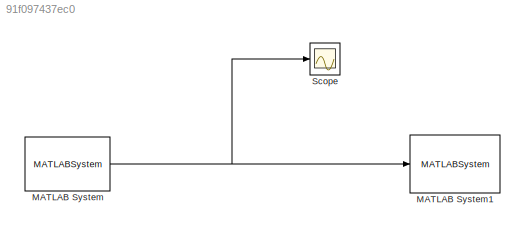
MODEL slx_91f097437ec0
KIND model
CONFIG AbsTol = auto
CONFIG FixedStep = auto
CONFIG MaxStep = auto
CONFIG MinStep = auto
CONFIG RelTol = 1e-3
CONFIG SampleTimeConstraint = Unconstrained
CONFIG Solver = ode45
CONFIG SolverMode = Auto
CONFIG SolverName = ode45
CONFIG StartTime = 0.0
CONFIG StopTime = 10.0
BLOCK [MATLABSystem] MATLAB System
  MaskDisplay = disp('Digital Read');\nport_label('output',1,'y');
  MaskType = DigitalRead_raspi
  Pin = 4
  Ports = [0, 1]
  SampleTime = 0.1
  System = DigitalRead_raspi
BLOCK [MATLABSystem] MATLAB System1
  MaskDisplay = disp('Digital Write');\nport_label('input',1,'u');
  MaskType = DigitalWrite_raspi
  Pin = 14
  Ports = [1]
  System = DigitalWrite_raspi
BLOCK [Scope] Scope
  Floating = off
  NumInputPorts = 1
  Ports = [1]
NET MATLAB System:1 -> MATLAB System1:1, Scope:1
note: NET lines group one-source signal fan-out (src -> all destinations, sorted); 1:1 wires keep LINE
